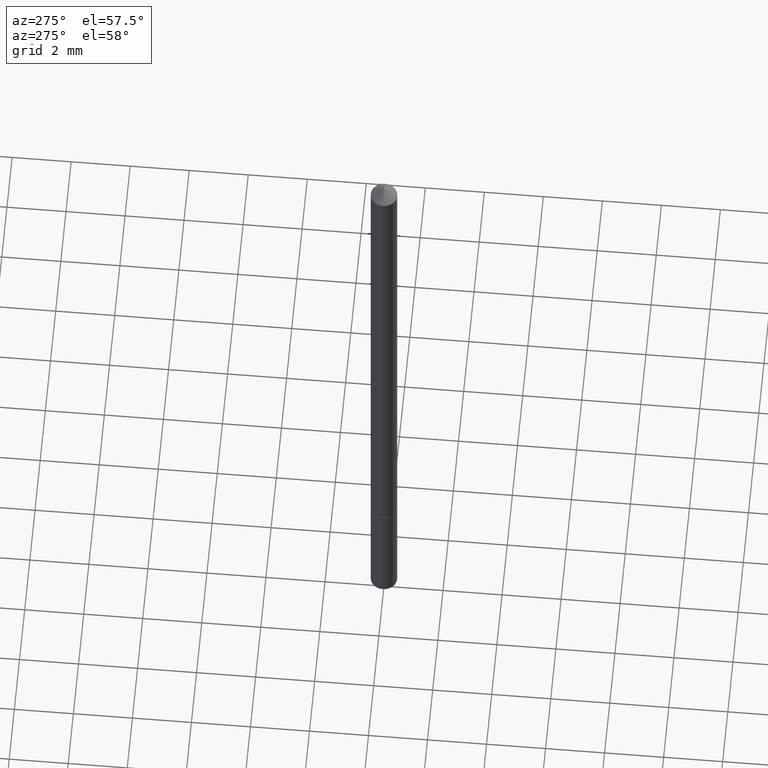
[diagram: clean part render]
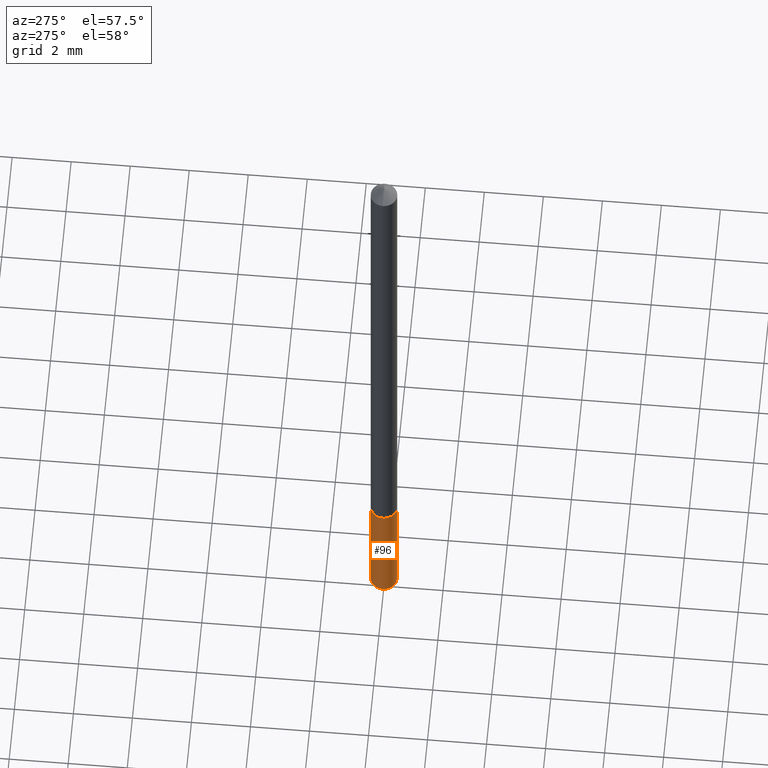
[diagram: same view with one face highlighted and labeled with its STEP entity id]
A machine part, auxiliary view. The second image highlights one B-rep face of the part: STEP entity #96.
In plain terms, the highlighted cylindrical surface (edge-blend (fillet) strip) has radius 0.4496 mm, axis along (-0, 0, 1).
Its self-contained STEP definition (entity closure, byte-faithful):
#14 = CARTESIAN_POINT ( 'NONE',  ( 1.964200545127901750E-29, -2.804357811358814562E-15, -0.8031999999999999140 ) ) ;
#17 = CIRCLE ( 'NONE', #145, 0.01770000000000000046 ) ;
#21 = EDGE_CURVE ( 'NONE', #116, #285, #210, .T. ) ;
#32 = ORIENTED_EDGE ( 'NONE', *, *, #197, .T. ) ;
#37 = DIRECTION ( 'NONE',  ( -2.445436275745842788E-29, 3.491527924283732183E-15, 1.000000000000000000 ) ) ;
#68 = FACE_OUTER_BOUND ( 'NONE', #358, .T. ) ;
#72 = EDGE_CURVE ( 'NONE', #153, #116, #100, .T. ) ;
#85 = CARTESIAN_POINT ( 'NONE',  ( 1.257660642295616485E-16, 0.01769999999999658305, -0.9787192114368419293 ) ) ;
#89 = CARTESIAN_POINT ( 'NONE',  ( 2.393421591865859803E-29, -3.417188039338808911E-15, -0.9787192114368419293 ) ) ;
#96 = ADVANCED_FACE ( 'NONE', ( #68 ), #176, .T. ) ;
#100 = LINE ( 'NONE', #149, #183 ) ;
#109 = CARTESIAN_POINT ( 'NONE',  ( -1.235984393950272671E-16, -0.01770000000000280377, -0.8031999999999999140 ) ) ;
#116 = VERTEX_POINT ( 'NONE', #238 ) ;
#124 = DIRECTION ( 'NONE',  ( -6.982962677686265133E-15, -1.000000000000000000, 0.000000000000000000 ) ) ;
#139 = AXIS2_PLACEMENT_3D ( 'NONE', #14, #235, #209 ) ;
#145 = AXIS2_PLACEMENT_3D ( 'NONE', #89, #195, #223 ) ;
#149 = CARTESIAN_POINT ( 'NONE',  ( 1.257660642295573590E-16, 0.01769999999999719714, -0.8031999999999999140 ) ) ;
#153 = VERTEX_POINT ( 'NONE', #85 ) ;
#176 = CYLINDRICAL_SURFACE ( 'NONE', #249, 0.01770000000000000046 ) ;
#178 = EDGE_CURVE ( 'NONE', #237, #285, #324, .T. ) ;
#180 = VECTOR ( 'NONE', #353, 39.37007874015748143 ) ;
#183 = VECTOR ( 'NONE', #338, 39.37007874015748143 ) ;
#195 = DIRECTION ( 'NONE',  ( -2.445436275745842788E-29, 3.491527924283732183E-15, 1.000000000000000000 ) ) ;
#197 = EDGE_CURVE ( 'NONE', #153, #237, #17, .T. ) ;
#202 = ORIENTED_EDGE ( 'NONE', *, *, #178, .T. ) ;
#209 = DIRECTION ( 'NONE',  ( -6.982962677686265133E-15, -1.000000000000000000, 0.000000000000000000 ) ) ;
#210 = CIRCLE ( 'NONE', #139, 0.01770000000000000046 ) ;
#223 = DIRECTION ( 'NONE',  ( -6.982962677686265133E-15, -1.000000000000000000, 0.000000000000000000 ) ) ;
#235 = DIRECTION ( 'NONE',  ( -2.445436275745842788E-29, 3.491527924283732183E-15, 1.000000000000000000 ) ) ;
#237 = VERTEX_POINT ( 'NONE', #246 ) ;
#238 = CARTESIAN_POINT ( 'NONE',  ( 1.257660642295616978E-16, 0.01769999999999719714, -0.8031999999999999140 ) ) ;
#246 = CARTESIAN_POINT ( 'NONE',  ( -1.235984393950229777E-16, -0.01770000000000341786, -0.9787192114368419293 ) ) ;
#249 = AXIS2_PLACEMENT_3D ( 'NONE', #288, #37, #124 ) ;
#270 = CARTESIAN_POINT ( 'NONE',  ( -1.235984393950272671E-16, -0.01770000000000280377, -0.8031999999999999140 ) ) ;
#285 = VERTEX_POINT ( 'NONE', #270 ) ;
#288 = CARTESIAN_POINT ( 'NONE',  ( 1.964200545127901750E-29, -2.804357811358814562E-15, -0.8031999999999999140 ) ) ;
#303 = ORIENTED_EDGE ( 'NONE', *, *, #21, .F. ) ;
#314 = ORIENTED_EDGE ( 'NONE', *, *, #72, .F. ) ;
#324 = LINE ( 'NONE', #109, #180 ) ;
#338 = DIRECTION ( 'NONE',  ( -2.445436275745842788E-29, 3.491527924283731788E-15, 1.000000000000000000 ) ) ;
#353 = DIRECTION ( 'NONE',  ( -2.445436275745842788E-29, 3.491527924283731788E-15, 1.000000000000000000 ) ) ;
#358 = EDGE_LOOP ( 'NONE', ( #314, #32, #202, #303 ) ) ;